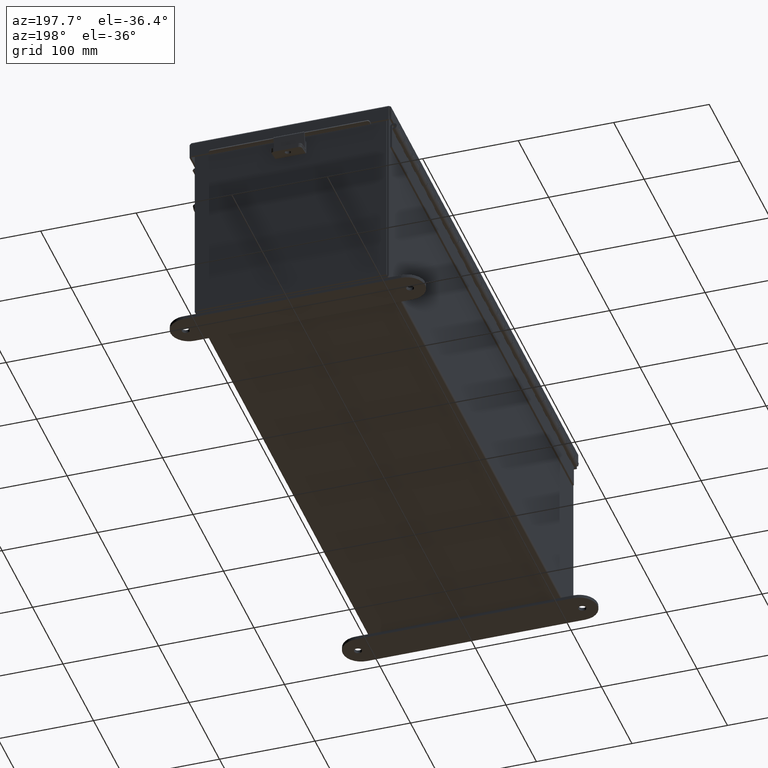
[diagram: clean part render]
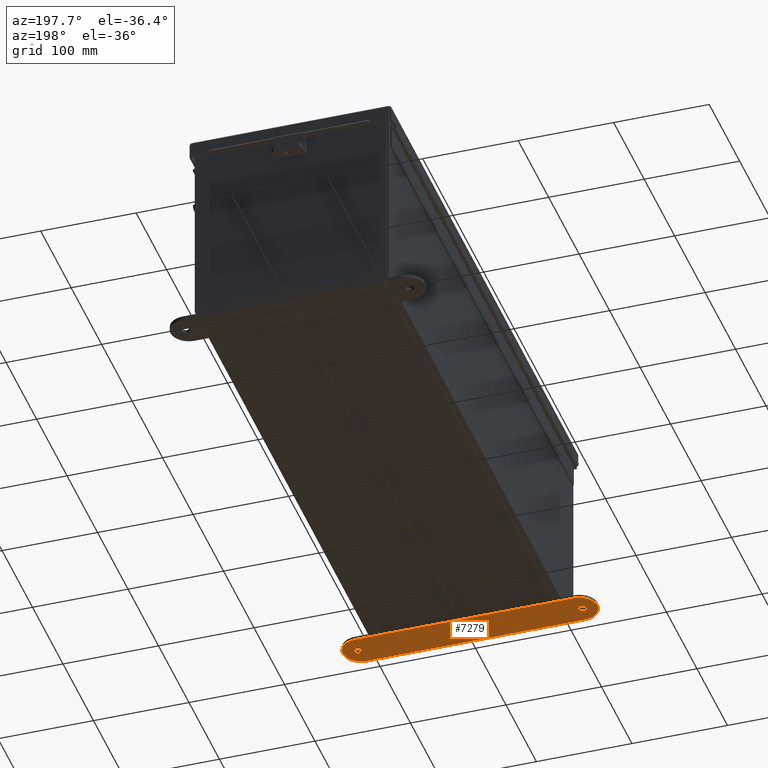
[diagram: same view with one face highlighted and labeled with its STEP entity id]
A machine part, auxiliary view. The second image highlights one B-rep face of the part: STEP entity #7279.
In plain terms, the highlighted planar face has unit normal (0, 0, -1).
Its self-contained STEP definition (entity closure, byte-faithful):
#56 = VERTEX_POINT ( 'NONE', #17910 ) ;
#413 = CIRCLE ( 'NONE', #5790, 0.1564999999999992800 ) ;
#569 = DIRECTION ( 'NONE',  ( -1.000000000000000000, 0.0000000000000000000, 0.0000000000000000000 ) ) ;
#1188 = AXIS2_PLACEMENT_3D ( 'NONE', #18269, #14910, #4423 ) ;
#1533 = FACE_OUTER_BOUND ( 'NONE', #20191, .T. ) ;
#1676 = ORIENTED_EDGE ( 'NONE', *, *, #15792, .F. ) ;
#1763 = EDGE_CURVE ( 'NONE', #18468, #14904, #20949, .T. ) ;
#2176 = CARTESIAN_POINT ( 'NONE',  ( -4.499999999999999100, -0.3379059350503874600, -0.1345000000000000100 ) ) ;
#2219 = AXIS2_PLACEMENT_3D ( 'NONE', #17004, #6521, #18765 ) ;
#2576 = ORIENTED_EDGE ( 'NONE', *, *, #9510, .F. ) ;
#2678 = EDGE_CURVE ( 'NONE', #56, #19220, #13327, .T. ) ;
#2932 = ORIENTED_EDGE ( 'NONE', *, *, #19245, .T. ) ;
#3745 = CARTESIAN_POINT ( 'NONE',  ( 4.499999999999999100, 1.162094064949613400, -0.1345000000000000100 ) ) ;
#4213 = CIRCLE ( 'NONE', #11291, 0.7500000000000010000 ) ;
#4319 = EDGE_CURVE ( 'NONE', #8181, #17109, #22348, .T. ) ;
#4423 = DIRECTION ( 'NONE',  ( -1.000000000000000000, 0.0000000000000000000, 0.0000000000000000000 ) ) ;
#4611 = LINE ( 'NONE', #19765, #13387 ) ;
#5388 = EDGE_CURVE ( 'NONE', #19220, #12597, #4213, .T. ) ;
#5552 = ORIENTED_EDGE ( 'NONE', *, *, #1763, .T. ) ;
#5742 = DIRECTION ( 'NONE',  ( -1.000000000000000000, -1.214154663850783900E-016, -0.0000000000000000000 ) ) ;
#5790 = AXIS2_PLACEMENT_3D ( 'NONE', #6368, #18617, #8159 ) ;
#6033 = CARTESIAN_POINT ( 'NONE',  ( -4.499999999999999100, 1.162094064949612300, -0.1345000000000000100 ) ) ;
#6108 = EDGE_LOOP ( 'NONE', ( #2576, #10154 ) ) ;
#6183 = FACE_BOUND ( 'NONE', #11737, .T. ) ;
#6368 = CARTESIAN_POINT ( 'NONE',  ( 4.625000000000000000, 0.4120940649496085400, -0.1345000000000000100 ) ) ;
#6445 = CARTESIAN_POINT ( 'NONE',  ( 4.499999999999999100, 0.4120940649496125900, -0.1345000000000000100 ) ) ;
#6521 = DIRECTION ( 'NONE',  ( 0.0000000000000000000, 0.0000000000000000000, 1.000000000000000000 ) ) ;
#6604 = CARTESIAN_POINT ( 'NONE',  ( 4.468500000000000600, 0.4120940649496085400, -0.1345000000000000100 ) ) ;
#7279 = ADVANCED_FACE ( 'NONE', ( #1533, #6183, #14954 ), #13158, .T. ) ;
#7466 = CIRCLE ( 'NONE', #2219, 0.1564999999999992800 ) ;
#7686 = EDGE_CURVE ( 'NONE', #17109, #56, #21840, .T. ) ;
#7715 = CARTESIAN_POINT ( 'NONE',  ( -4.468500000000000600, 0.4120940649496085400, -0.1345000000000000100 ) ) ;
#8013 = CARTESIAN_POINT ( 'NONE',  ( -4.499999999999999100, -0.3379059350503874600, -0.1345000000000000100 ) ) ;
#8153 = CARTESIAN_POINT ( 'NONE',  ( 5.250000000000000900, 0.4120940649496125900, -0.1345000000000000100 ) ) ;
#8159 = DIRECTION ( 'NONE',  ( -1.000000000000000000, 0.0000000000000000000, 0.0000000000000000000 ) ) ;
#8181 = VERTEX_POINT ( 'NONE', #6033 ) ;
#8206 = ORIENTED_EDGE ( 'NONE', *, *, #5388, .F. ) ;
#8241 = DIRECTION ( 'NONE',  ( -1.000000000000000000, 0.0000000000000000000, 0.0000000000000000000 ) ) ;
#8281 = CARTESIAN_POINT ( 'NONE',  ( 4.625000000000000000, 0.4120940649496085400, -0.1345000000000000100 ) ) ;
#8314 = CARTESIAN_POINT ( 'NONE',  ( 4.781499999999999400, 0.4120940649496085400, -0.1345000000000000100 ) ) ;
#8347 = CARTESIAN_POINT ( 'NONE',  ( -4.499999999999999100, 0.4120940649496124300, -0.1345000000000000100 ) ) ;
#9510 = EDGE_CURVE ( 'NONE', #18676, #21333, #9696, .T. ) ;
#9586 = CARTESIAN_POINT ( 'NONE',  ( -4.625000000000000000, 0.4120940649496085400, -0.1345000000000000100 ) ) ;
#9696 = CIRCLE ( 'NONE', #20472, 0.1564999999999992800 ) ;
#10042 = DIRECTION ( 'NONE',  ( -1.000000000000000000, 0.0000000000000000000, 0.0000000000000000000 ) ) ;
#10129 = DIRECTION ( 'NONE',  ( 1.000000000000000000, 0.0000000000000000000, 0.0000000000000000000 ) ) ;
#10154 = ORIENTED_EDGE ( 'NONE', *, *, #15309, .F. ) ;
#11057 = DIRECTION ( 'NONE',  ( 0.0000000000000000000, 0.0000000000000000000, 1.000000000000000000 ) ) ;
#11291 = AXIS2_PLACEMENT_3D ( 'NONE', #6445, #18693, #8241 ) ;
#11313 = DIRECTION ( 'NONE',  ( -1.000000000000000000, 0.0000000000000000000, 0.0000000000000000000 ) ) ;
#11737 = EDGE_LOOP ( 'NONE', ( #5552, #2932 ) ) ;
#12597 = VERTEX_POINT ( 'NONE', #3745 ) ;
#12728 = DIRECTION ( 'NONE',  ( 1.000000000000000000, -1.214154663850783900E-016, 0.0000000000000000000 ) ) ;
#13158 = PLANE ( 'NONE',  #1188 ) ;
#13327 = CIRCLE ( 'NONE', #18294, 0.7500000000000010000 ) ;
#13387 = VECTOR ( 'NONE', #5742, 39.37007874015748100 ) ;
#14904 = VERTEX_POINT ( 'NONE', #17496 ) ;
#14910 = DIRECTION ( 'NONE',  ( -0.0000000000000000000, 0.0000000000000000000, -1.000000000000000000 ) ) ;
#14954 = FACE_BOUND ( 'NONE', #6108, .T. ) ;
#15309 = EDGE_CURVE ( 'NONE', #21333, #18676, #413, .T. ) ;
#15792 = EDGE_CURVE ( 'NONE', #12597, #8181, #4611, .T. ) ;
#16170 = ORIENTED_EDGE ( 'NONE', *, *, #4319, .F. ) ;
#16840 = AXIS2_PLACEMENT_3D ( 'NONE', #8347, #20619, #10129 ) ;
#17004 = CARTESIAN_POINT ( 'NONE',  ( -4.625000000000000000, 0.4120940649496085400, -0.1345000000000000100 ) ) ;
#17109 = VERTEX_POINT ( 'NONE', #8013 ) ;
#17122 = VECTOR ( 'NONE', #12728, 39.37007874015748100 ) ;
#17430 = ORIENTED_EDGE ( 'NONE', *, *, #7686, .F. ) ;
#17496 = CARTESIAN_POINT ( 'NONE',  ( -4.781499999999999400, 0.4120940649496085400, -0.1345000000000000100 ) ) ;
#17694 = AXIS2_PLACEMENT_3D ( 'NONE', #9586, #21867, #11313 ) ;
#17910 = CARTESIAN_POINT ( 'NONE',  ( 4.499999999999999100, -0.3379059350503885700, -0.1345000000000000100 ) ) ;
#18269 = CARTESIAN_POINT ( 'NONE',  ( 4.499999999999999100, 0.4120940649496125900, -0.1345000000000000100 ) ) ;
#18294 = AXIS2_PLACEMENT_3D ( 'NONE', #21589, #11057, #569 ) ;
#18468 = VERTEX_POINT ( 'NONE', #7715 ) ;
#18617 = DIRECTION ( 'NONE',  ( -0.0000000000000000000, -0.0000000000000000000, -1.000000000000000000 ) ) ;
#18676 = VERTEX_POINT ( 'NONE', #8314 ) ;
#18693 = DIRECTION ( 'NONE',  ( 0.0000000000000000000, 0.0000000000000000000, 1.000000000000000000 ) ) ;
#18765 = DIRECTION ( 'NONE',  ( -1.000000000000000000, 0.0000000000000000000, 0.0000000000000000000 ) ) ;
#19220 = VERTEX_POINT ( 'NONE', #8153 ) ;
#19245 = EDGE_CURVE ( 'NONE', #14904, #18468, #7466, .T. ) ;
#19765 = CARTESIAN_POINT ( 'NONE',  ( -4.499999999999999100, 1.162094064949612300, -0.1345000000000000100 ) ) ;
#20191 = EDGE_LOOP ( 'NONE', ( #21341, #17430, #16170, #1676, #8206 ) ) ;
#20472 = AXIS2_PLACEMENT_3D ( 'NONE', #8281, #20543, #10042 ) ;
#20543 = DIRECTION ( 'NONE',  ( -0.0000000000000000000, -0.0000000000000000000, -1.000000000000000000 ) ) ;
#20619 = DIRECTION ( 'NONE',  ( 0.0000000000000000000, 0.0000000000000000000, 1.000000000000000000 ) ) ;
#20949 = CIRCLE ( 'NONE', #17694, 0.1564999999999992800 ) ;
#21333 = VERTEX_POINT ( 'NONE', #6604 ) ;
#21341 = ORIENTED_EDGE ( 'NONE', *, *, #2678, .F. ) ;
#21589 = CARTESIAN_POINT ( 'NONE',  ( 4.499999999999999100, 0.4120940649496125900, -0.1345000000000000100 ) ) ;
#21840 = LINE ( 'NONE', #2176, #17122 ) ;
#21867 = DIRECTION ( 'NONE',  ( 0.0000000000000000000, 0.0000000000000000000, 1.000000000000000000 ) ) ;
#22348 = CIRCLE ( 'NONE', #16840, 0.7499999999999998900 ) ;